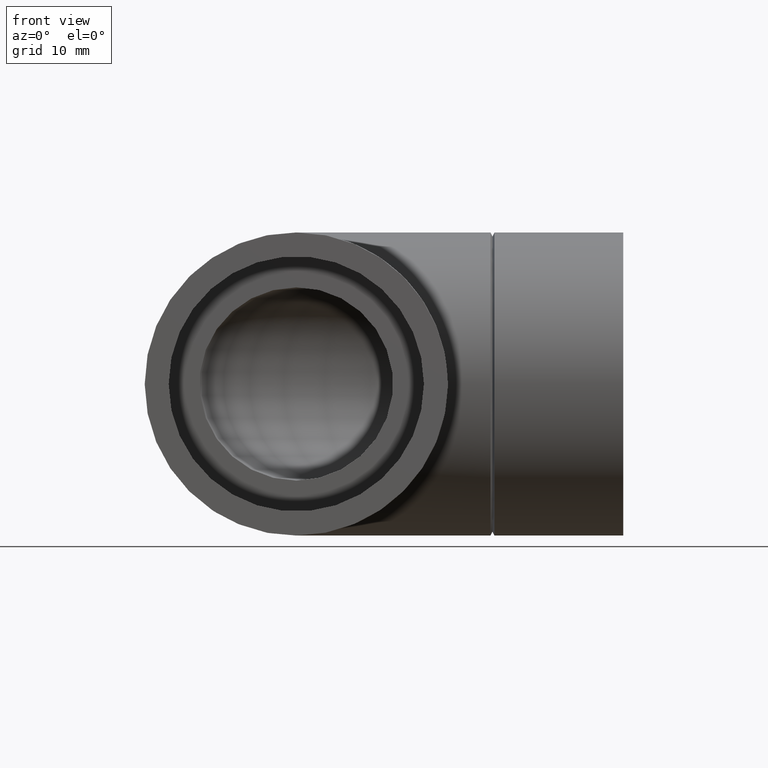
[diagram: clean part render]
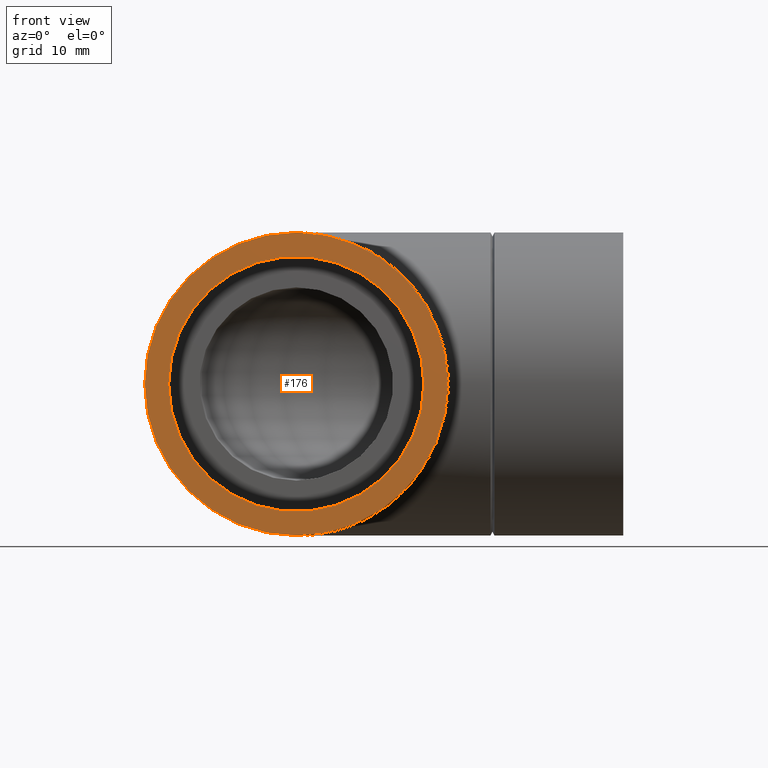
[diagram: same view with one face highlighted and labeled with its STEP entity id]
A machine part, front view. The second image highlights one B-rep face of the part: STEP entity #176.
In plain terms, the highlighted planar face has unit normal (0, -1, 0).
Its self-contained STEP definition (entity closure, byte-faithful):
#21=PLANE('',#205);
#32=FACE_BOUND('',#71,.T.);
#47=FACE_OUTER_BOUND('',#70,.T.);
#70=EDGE_LOOP('',(#147));
#71=EDGE_LOOP('',(#148));
#87=CIRCLE('',#193,16.);
#92=CIRCLE('',#203,19.);
#102=VERTEX_POINT('',#294);
#107=VERTEX_POINT('',#309);
#117=EDGE_CURVE('',#102,#102,#87,.T.);
#122=EDGE_CURVE('',#107,#107,#92,.T.);
#147=ORIENTED_EDGE('',*,*,#122,.F.);
#148=ORIENTED_EDGE('',*,*,#117,.T.);
#176=ADVANCED_FACE('',(#47,#32),#21,.T.);
#193=AXIS2_PLACEMENT_3D('',#295,#235,#236);
#203=AXIS2_PLACEMENT_3D('',#310,#255,#256);
#205=AXIS2_PLACEMENT_3D('',#312,#259,#260);
#235=DIRECTION('center_axis',(-1.22464679914735E-16,1.,0.));
#236=DIRECTION('ref_axis',(-1.,-1.00929365875014E-16,0.));
#255=DIRECTION('center_axis',(-1.22464679914735E-16,1.,0.));
#256=DIRECTION('ref_axis',(1.,1.22464679914735E-16,0.));
#259=DIRECTION('center_axis',(1.22464679914735E-16,-1.,0.));
#260=DIRECTION('ref_axis',(0.,0.,-1.));
#294=CARTESIAN_POINT('',(16.,-39.,1.95943487863577E-15));
#295=CARTESIAN_POINT('Origin',(4.77612251667468E-15,-39.,0.));
#309=CARTESIAN_POINT('',(-19.,-39.,0.));
#310=CARTESIAN_POINT('Origin',(4.77612251667468E-15,-39.,0.));
#312=CARTESIAN_POINT('Origin',(-19.,-39.,0.));